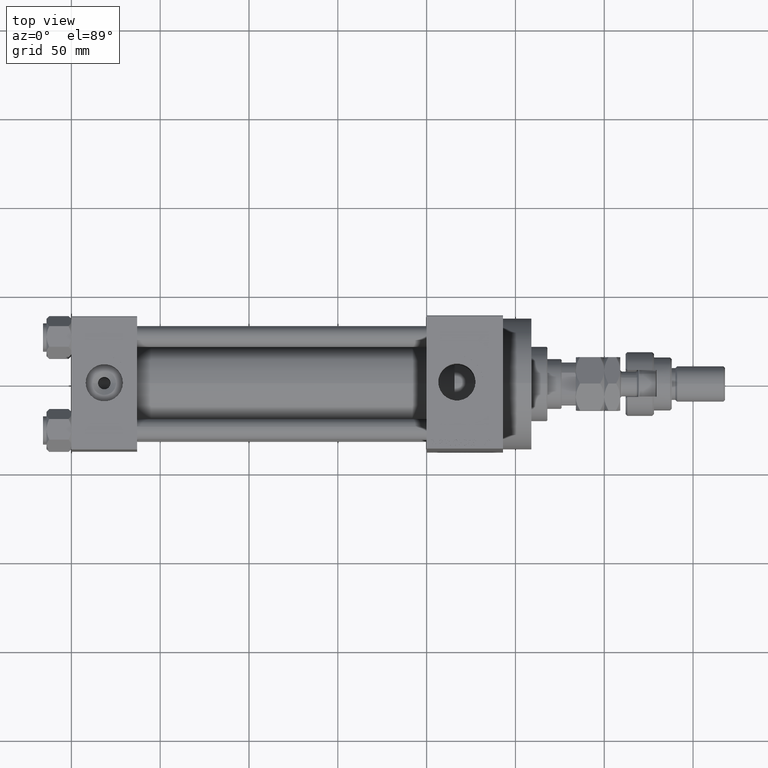
[diagram: clean part render]
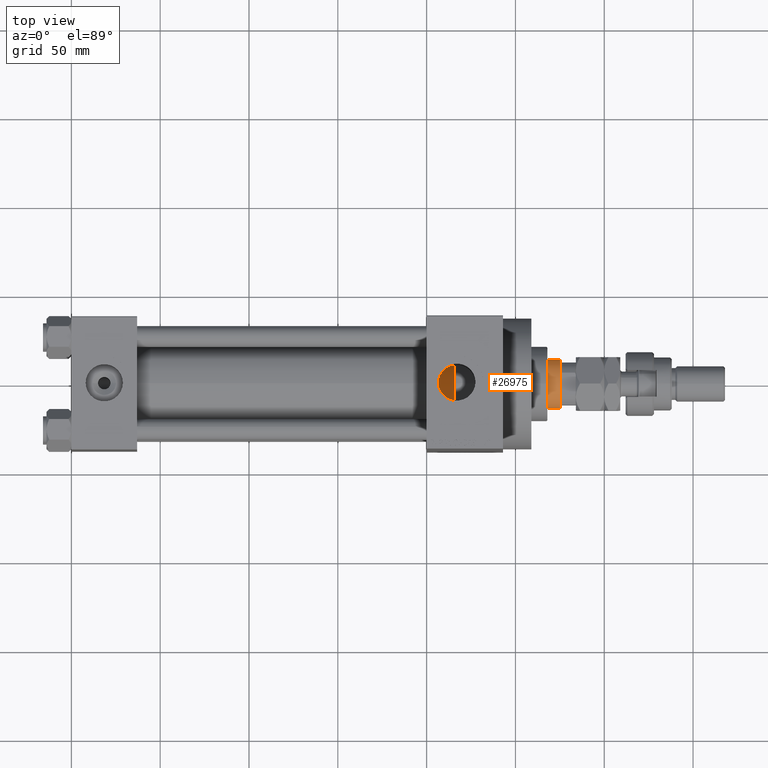
[diagram: same view with one face highlighted and labeled with its STEP entity id]
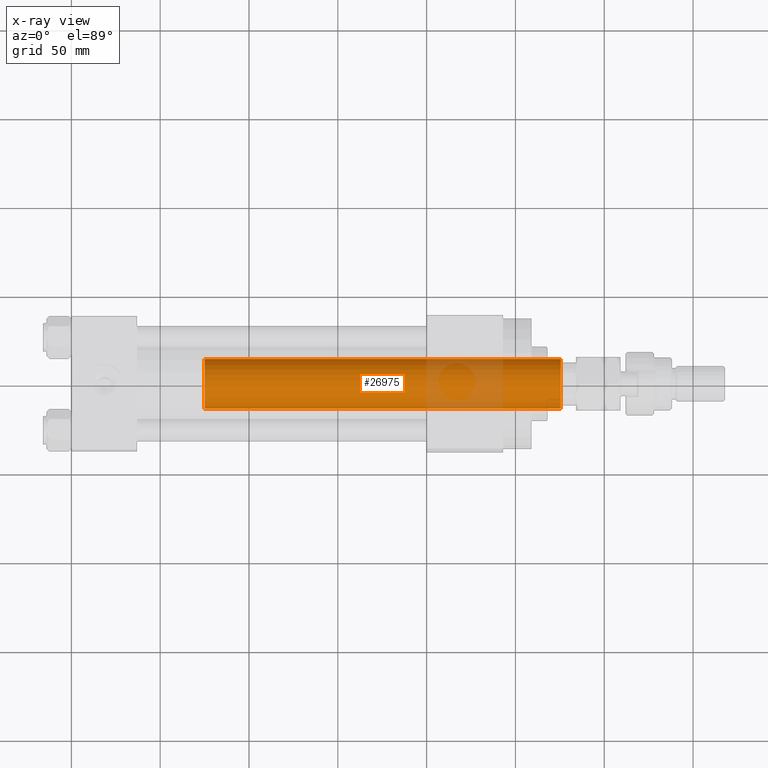
[diagram: x-ray of the same camera — body ghosted, the highlighted face saturated]
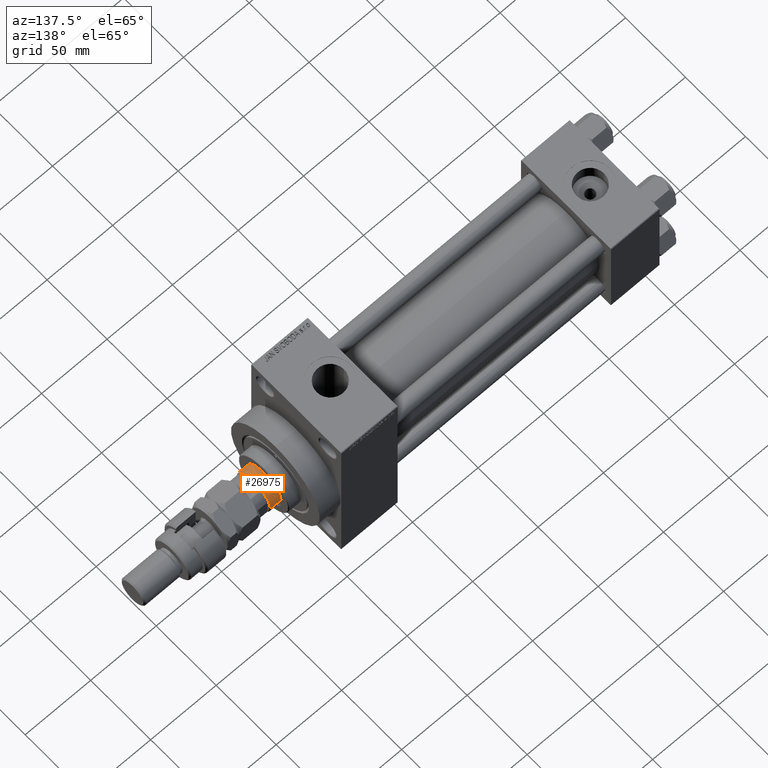
[diagram: same view with one face highlighted and labeled with its STEP entity id]
A machine part, top view. The second image highlights one B-rep face of the part: STEP entity #26975.
The next image is the same camera in x-ray: the body ghosted, the highlighted face saturated — about 15% of this face is hidden behind the body in this view.
A second angle (auxiliary view) of the same face is appended — the face is thin or edge-on in the first view.
In plain terms, the highlighted cylindrical surface (edge-blend (fillet) strip) has radius 14 mm, axis along (-1, 0, 0).
Its self-contained STEP definition (entity closure, byte-faithful):
#2890 = VERTEX_POINT ( 'NONE', #39220 ) ;
#7511 = DIRECTION ( 'NONE',  ( 0.000000000000000000, 0.000000000000000000, 1.000000000000000000 ) ) ;
#10272 = AXIS2_PLACEMENT_3D ( 'NONE', #27686, #11689, #43192 ) ;
#11689 = DIRECTION ( 'NONE',  ( -0.000000000000000000, -0.000000000000000000, -1.000000000000000000 ) ) ;
#12151 = DIRECTION ( 'NONE',  ( 1.000000000000000000, 0.000000000000000000, 0.000000000000000000 ) ) ;
#12473 = CARTESIAN_POINT ( 'NONE',  ( -14.00000000000000178, 0.000000000000000000, 238.5000000000000284 ) ) ;
#12679 = LINE ( 'NONE', #39380, #32179 ) ;
#14228 = ORIENTED_EDGE ( 'NONE', *, *, #26980, .F. ) ;
#15790 = VERTEX_POINT ( 'NONE', #27738 ) ;
#15902 = ORIENTED_EDGE ( 'NONE', *, *, #33358, .T. ) ;
#19543 = DIRECTION ( 'NONE',  ( -0.000000000000000000, -0.000000000000000000, -1.000000000000000000 ) ) ;
#19800 = CARTESIAN_POINT ( 'NONE',  ( -14.00000000000000178, 0.000000000000000000, 239.0000000000000284 ) ) ;
#22108 = VERTEX_POINT ( 'NONE', #36872 ) ;
#23015 = DIRECTION ( 'NONE',  ( 1.000000000000000000, 0.000000000000000000, 0.000000000000000000 ) ) ;
#23410 = EDGE_CURVE ( 'NONE', #15790, #34676, #29644, .T. ) ;
#24125 = DIRECTION ( 'NONE',  ( -0.000000000000000000, -0.000000000000000000, -1.000000000000000000 ) ) ;
#26975 = ADVANCED_FACE ( 'NONE', ( #43436 ), #31506, .T. ) ;
#26980 = EDGE_CURVE ( 'NONE', #15790, #22108, #12679, .T. ) ;
#27394 = CARTESIAN_POINT ( 'NONE',  ( 0.000000000000000000, 0.000000000000000000, 238.5000000000000284 ) ) ;
#27686 = CARTESIAN_POINT ( 'NONE',  ( 0.000000000000000000, 0.000000000000000000, 239.0000000000000284 ) ) ;
#27738 = CARTESIAN_POINT ( 'NONE',  ( 14.00000000000000178, 1.714505518806294835E-15, 238.5000000000000284 ) ) ;
#29644 = CIRCLE ( 'NONE', #45055, 14.00000000000000178 ) ;
#31506 = CYLINDRICAL_SURFACE ( 'NONE', #10272, 14.00000000000000178 ) ;
#32179 = VECTOR ( 'NONE', #24125, 1000.000000000000000 ) ;
#33152 = AXIS2_PLACEMENT_3D ( 'NONE', #35213, #7511, #23015 ) ;
#33260 = CIRCLE ( 'NONE', #33152, 14.00000000000000178 ) ;
#33358 = EDGE_CURVE ( 'NONE', #34676, #2890, #41916, .T. ) ;
#34676 = VERTEX_POINT ( 'NONE', #12473 ) ;
#35213 = CARTESIAN_POINT ( 'NONE',  ( 0.000000000000000000, 0.000000000000000000, 38.00000000000000000 ) ) ;
#36227 = VECTOR ( 'NONE', #19543, 1000.000000000000000 ) ;
#36872 = CARTESIAN_POINT ( 'NONE',  ( 14.00000000000000178, 1.714505518806294835E-15, 38.00000000000000000 ) ) ;
#37439 = EDGE_LOOP ( 'NONE', ( #14228, #44313, #15902, #43189 ) ) ;
#39220 = CARTESIAN_POINT ( 'NONE',  ( -14.00000000000000178, 0.000000000000000000, 38.00000000000000000 ) ) ;
#39380 = CARTESIAN_POINT ( 'NONE',  ( 14.00000000000000178, 1.714505518806294835E-15, 239.0000000000000284 ) ) ;
#41443 = EDGE_CURVE ( 'NONE', #2890, #22108, #33260, .T. ) ;
#41916 = LINE ( 'NONE', #19800, #36227 ) ;
#43189 = ORIENTED_EDGE ( 'NONE', *, *, #41443, .T. ) ;
#43192 = DIRECTION ( 'NONE',  ( -1.000000000000000000, 0.000000000000000000, 0.000000000000000000 ) ) ;
#43436 = FACE_OUTER_BOUND ( 'NONE', #37439, .T. ) ;
#44313 = ORIENTED_EDGE ( 'NONE', *, *, #23410, .T. ) ;
#45055 = AXIS2_PLACEMENT_3D ( 'NONE', #27394, #49097, #12151 ) ;
#49097 = DIRECTION ( 'NONE',  ( 0.000000000000000000, 0.000000000000000000, -1.000000000000000000 ) ) ;